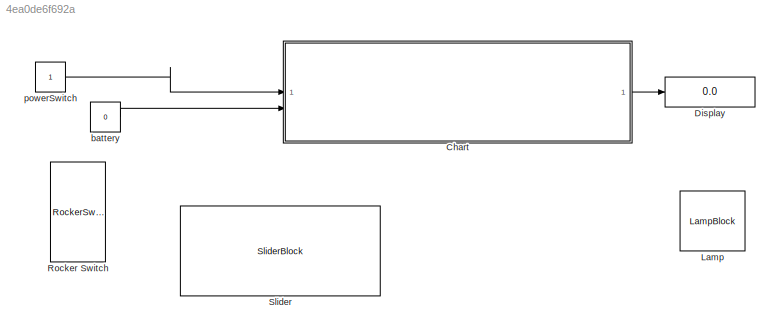
MODEL slx_4ea0de6f692a
KIND model
CONFIG AbsTol = auto
CONFIG EnableMultiTasking = on
CONFIG FixedStep = 0.1
CONFIG MaxStep = auto
CONFIG MinStep = auto
CONFIG RelTol = 1e-3
CONFIG SampleTimeConstraint = Unconstrained
CONFIG SolverName = FixedStepDiscrete
CONFIG StartTime = 0.0
CONFIG StopTime = inf
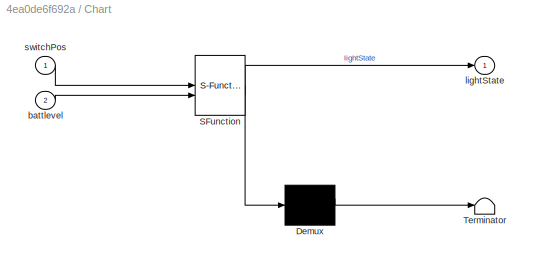
BLOCK [SubSystem] Chart
  ErrorFcn = Stateflow.Translate.translate
  PermitHierarchicalResolution = ExplicitOnly
  SFBlockType = Chart
  TreatAsAtomicUnit = on
BLOCK [Demux] Chart/ Demux 
  Outputs = 1
BLOCK [S-Function] Chart/ SFunction 
  EnableBusSupport = on
  FunctionName = sf_sfun
  PortCounts = [2 2]
  SFcnIsStateOwnerBlock = off
  SFunctionDeploymentMode = off
  Tag = Stateflow S-Function 3
BLOCK [Terminator] Chart/ Terminator 
BLOCK [Inport] Chart/battlevel
  Port = 2
BLOCK [Outport] Chart/lightState
BLOCK [Inport] Chart/switchPos
BLOCK [Display] Display
  Decimation = 1
BLOCK [LampBlock] Lamp
  LabelPosition = Hide
BLOCK [RockerSwitchBlock] Rocker Switch
BLOCK [SliderBlock] Slider
BLOCK [Constant] battery
  Value = 0
BLOCK [Constant] powerSwitch
LINE Chart:1 -> Display:1
LINE battery:1 -> Chart:2
LINE powerSwitch:1 -> Chart:1
CHART Chart states=3 transitions=7
  STATE_LABEL 'OFF\nentry:\nlightState=0;'
  STATE_LABEL 'ON\nentry:\nlightState=1;'
  STATE_LABEL 'LOW_BATT\nentry:\nlightState=2;'
CHART  states=0 transitions=0
